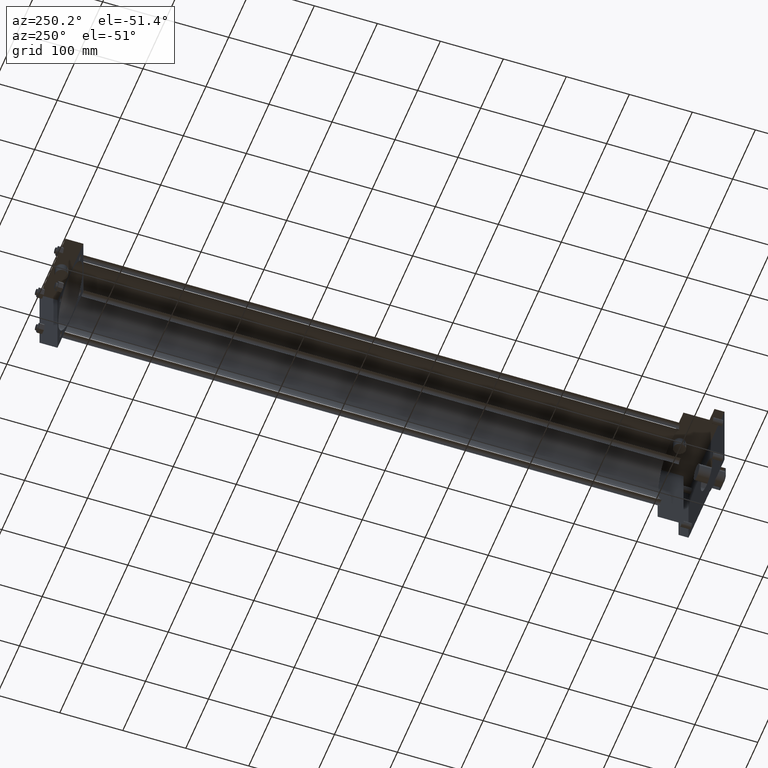
[diagram: clean part render]
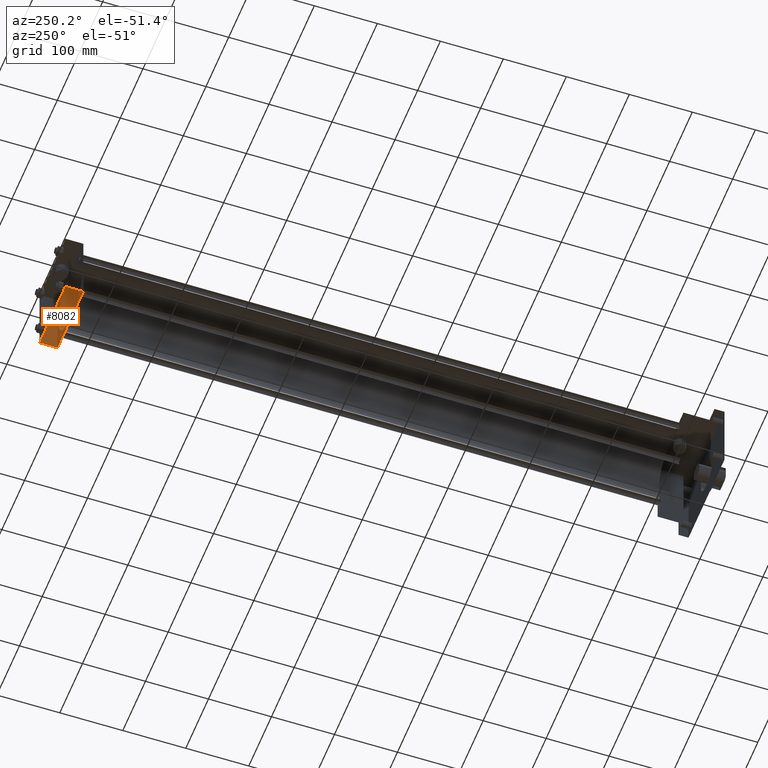
[diagram: same view with one face highlighted and labeled with its STEP entity id]
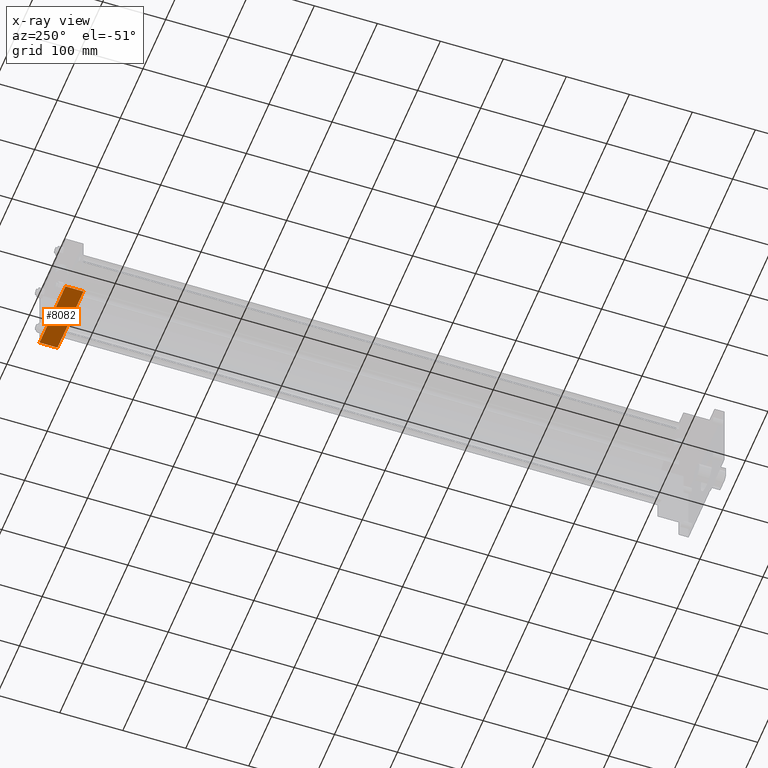
[diagram: x-ray of the same camera — body ghosted, the highlighted face saturated]
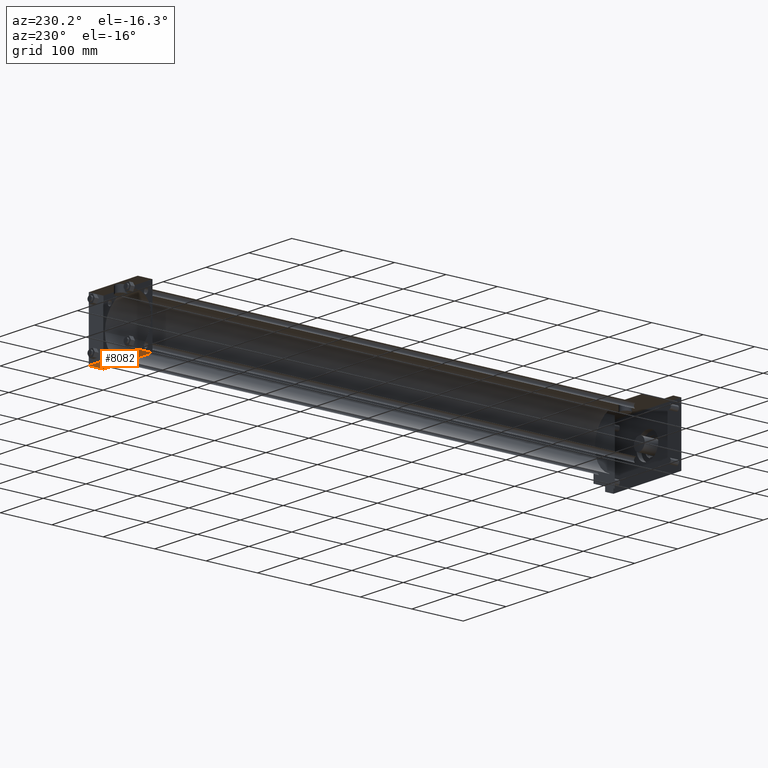
[diagram: same view with one face highlighted and labeled with its STEP entity id]
A machine part, auxiliary view. The second image highlights one B-rep face of the part: STEP entity #8082.
The next image is the same camera in x-ray: the body ghosted, the highlighted face saturated — about 0% of this face is hidden behind the body in this view.
A second angle (auxiliary view) of the same face is appended — the face is thin or edge-on in the first view.
In plain terms, the highlighted planar face has unit normal (0, 0, -1).
Its self-contained STEP definition (entity closure, byte-faithful):
#2239=EDGE_CURVE('',#2244,#2245,#2240,.T.);
#2240=LINE('',#2241,#2242);
#2241=CARTESIAN_POINT('',(-5.715000000E+001,1.063625000E+003,-5.715000000E+001));
#2242=VECTOR('',#2243,1.0E+000);
#2243=DIRECTION('',(1.0E+000,0.0E+000,0.0E+000));
#2244=VERTEX_POINT('',#2246);
#2245=VERTEX_POINT('',#2247);
#2246=CARTESIAN_POINT('',(-5.715000000E+001,1.063625000E+003,-5.715000000E+001));
#2247=CARTESIAN_POINT('',(5.715000000E+001,1.063625000E+003,-5.715000000E+001));
#2412=EDGE_CURVE('',#2417,#2418,#2413,.T.);
#2413=LINE('',#2414,#2415);
#2414=CARTESIAN_POINT('',(-5.715000000E+001,1.035050000E+003,-5.715000000E+001));
#2415=VECTOR('',#2416,1.0E+000);
#2416=DIRECTION('',(1.0E+000,0.0E+000,0.0E+000));
#2417=VERTEX_POINT('',#2419);
#2418=VERTEX_POINT('',#2420);
#2419=CARTESIAN_POINT('',(-5.715000000E+001,1.035050000E+003,-5.715000000E+001));
#2420=CARTESIAN_POINT('',(5.715000000E+001,1.035050000E+003,-5.715000000E+001));
#2454=FACE_OUTER_BOUND('',#2456,.T.);
#2455=FACE_BOUND('',#2457,.T.);
#2456=EDGE_LOOP('',(#2458,#2459,#2460,#2461));
#2457=EDGE_LOOP('',(#2472));
#2458=ORIENTED_EDGE('',*,*,#2412,.F.);
#2459=ORIENTED_EDGE('',*,*,#2462,.F.);
#2460=ORIENTED_EDGE('',*,*,#2239,.T.);
#2461=ORIENTED_EDGE('',*,*,#2467,.T.);
#2462=EDGE_CURVE('',#2244,#2417,#2463,.T.);
#2463=LINE('',#2464,#2465);
#2464=CARTESIAN_POINT('',(-5.715000000E+001,1.063625000E+003,-5.715000000E+001));
#2465=VECTOR('',#2466,1.0E+000);
#2466=DIRECTION('',(0.0E+000,-1.0E+000,0.0E+000));
#2467=EDGE_CURVE('',#2245,#2418,#2468,.T.);
#2468=LINE('',#2469,#2470);
#2469=CARTESIAN_POINT('',(5.715000000E+001,1.063625000E+003,-5.715000000E+001));
#2470=VECTOR('',#2471,1.0E+000);
#2471=DIRECTION('',(0.0E+000,-1.0E+000,0.0E+000));
#2472=ORIENTED_EDGE('',*,*,#2473,.T.);
#2473=EDGE_CURVE('',#2479,#2479,#2474,.T.);
#2474=CIRCLE('',#2475,4.365625000E+000);
#2475=AXIS2_PLACEMENT_3D('',#2476,#2477,#2478);
#2476=CARTESIAN_POINT('',(0.000000000E+000,1.046162500E+003,-5.715000000E+001));
#2477=DIRECTION('',(0.0E+000,0.0E+000,1.0E+000));
#2478=DIRECTION('',(1.0E+000,0.0E+000,0.0E+000));
#2479=VERTEX_POINT('',#2480);
#2480=CARTESIAN_POINT('',(4.365625000E+000,1.046162500E+003,-5.715000000E+001));
#2481=PLANE('',#2482);
#2482=AXIS2_PLACEMENT_3D('',#2483,#2484,#2485);
#2483=CARTESIAN_POINT('',(-5.715000000E+001,1.063625000E+003,-5.715000000E+001));
#2484=DIRECTION('',(0.0E+000,0.0E+000,-1.0E+000));
#2485=DIRECTION('',(-1.0E+000,0.0E+000,0.0E+000));
#8082=ADVANCED_FACE('',(#2454,#2455),#2481,.T.);